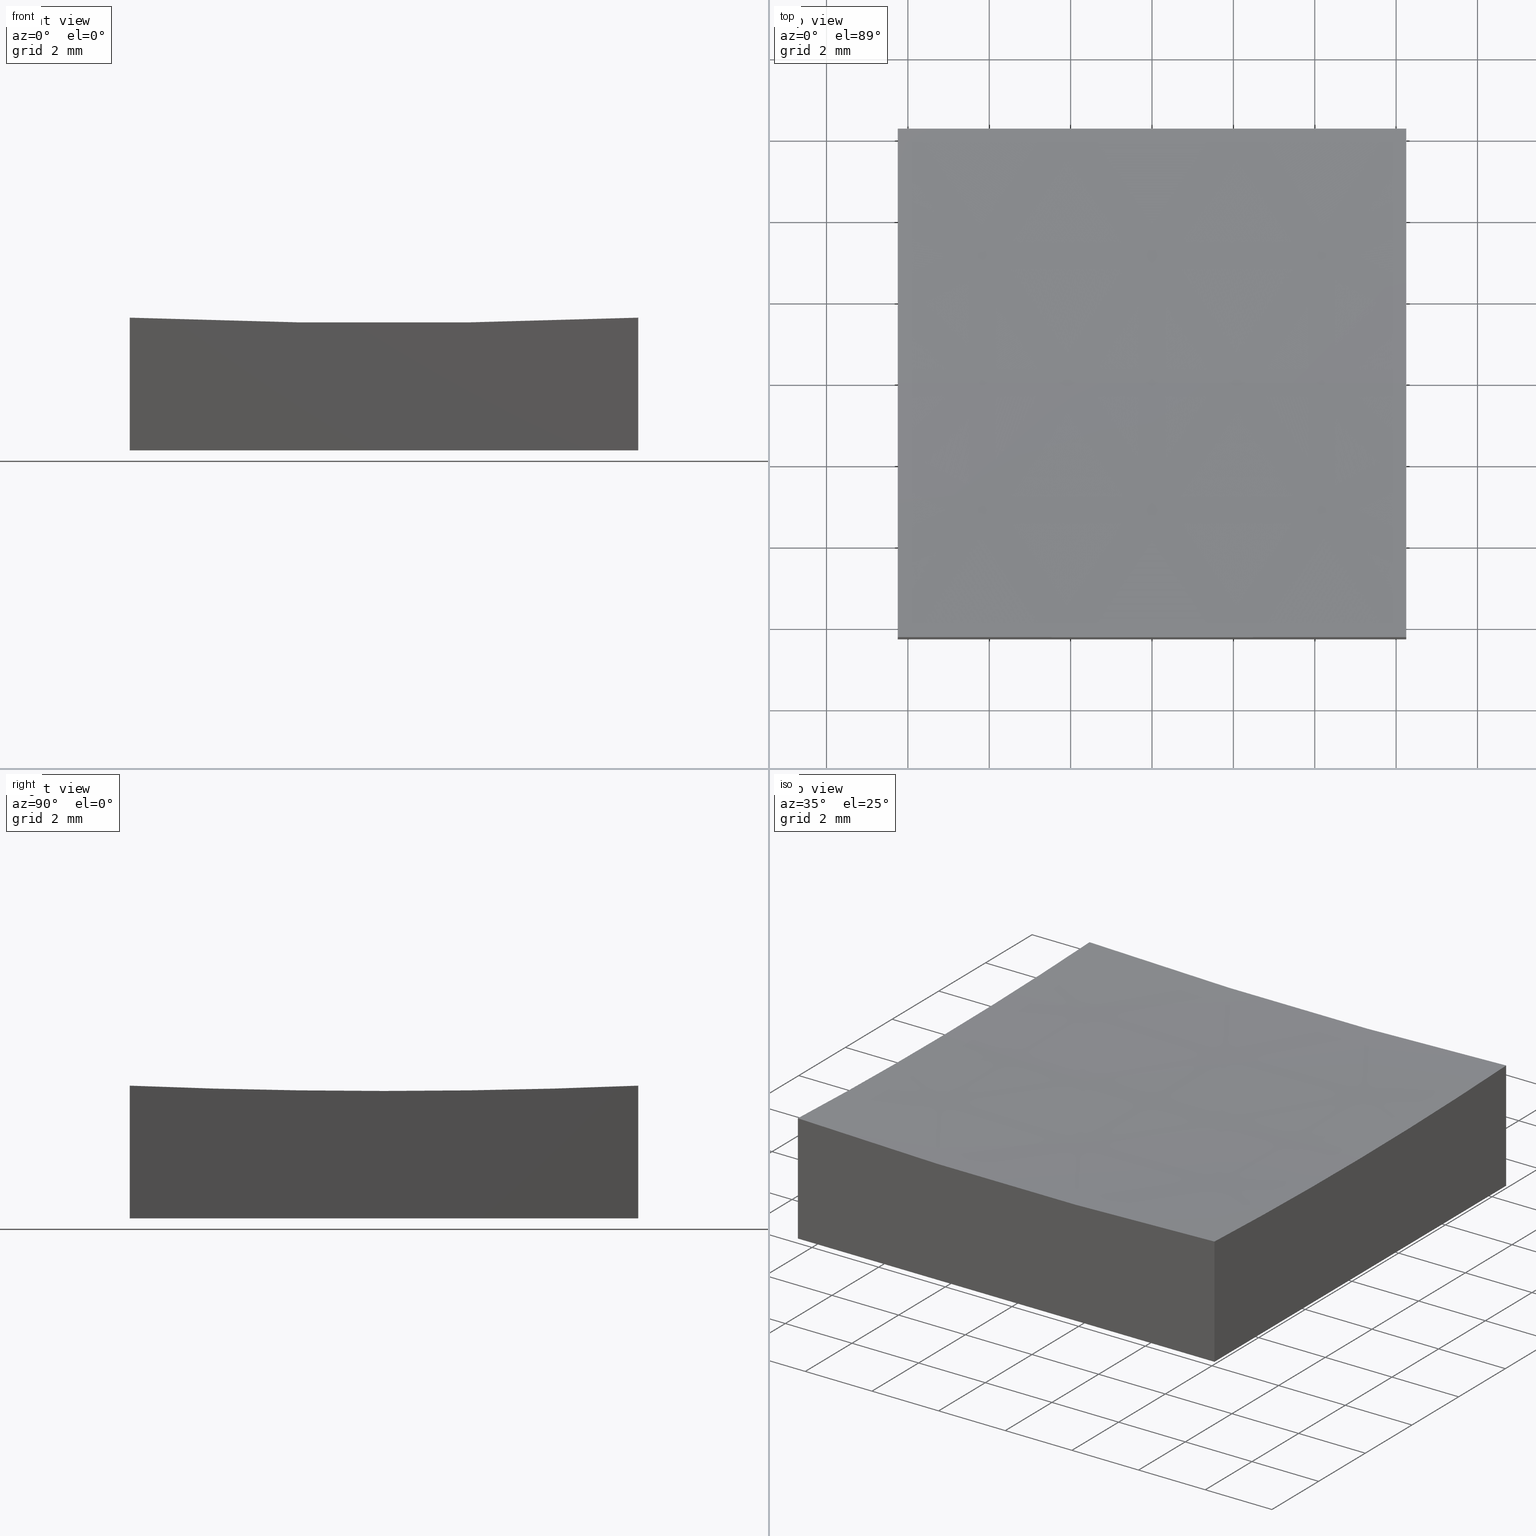
[diagram: canonical four-view strip — front | top / right | iso, engineering-drawing reading convention]
A machine part, canonical four-view strip (front | top / right | iso — engineering-drawing reading convention). The complete STEP part file that produces these views, byte-faithful:
ISO-10303-21;
HEADER;
FILE_DESCRIPTION (( 'STEP AP214' ),
    '1' );
FILE_NAME ('270019.STEP',
    '2020-06-01T09:06:12',
    ( '' ),
    ( '' ),
    'SwSTEP 2.0',
    'SolidWorks 2019',
    '' );
FILE_SCHEMA (( 'AUTOMOTIVE_DESIGN' ));
ENDSEC;

DATA;
#1 = ORIENTED_EDGE ( 'NONE', *, *, #154, .T. ) ;
#2 = CARTESIAN_POINT ( 'NONE',  ( -6.250000000000000000, 7.654042494670983244E-16, 3.130264896477552572 ) ) ;
#3 = VERTEX_POINT ( 'NONE', #142 ) ;
#4 = DIRECTION ( 'NONE',  ( 1.000000000000000000, 0.0000000000000000000, 0.0000000000000000000 ) ) ;
#5 = VECTOR ( 'NONE', #144, 1000.000000000000000 ) ;
#6 = ORIENTED_EDGE ( 'NONE', *, *, #86, .F. ) ;
#7 = SURFACE_STYLE_USAGE ( .BOTH. , #146 ) ;
#8 = APPLICATION_CONTEXT ( 'automotive_design' ) ;
#9 = CARTESIAN_POINT ( 'NONE',  ( 6.250000000000000000, -6.250000000000000888, 0.0000000000000000000 ) ) ;
#10 = DIRECTION ( 'NONE',  ( 1.224646799147353207E-16, 1.000000000000000000, 1.519266480857635220E-33 ) ) ;
#11 = CARTESIAN_POINT ( 'NONE',  ( 1.873709602695450291E-14, 0.0000000000000000000, 153.0000000000000000 ) ) ;
#12 = AXIS2_PLACEMENT_3D ( 'NONE', #207, #10, #15 ) ;
#13 = DIRECTION ( 'NONE',  ( -0.0000000000000000000, 1.000000000000000000, 0.0000000000000000000 ) ) ;
#14 = DIRECTION ( 'NONE',  ( 0.0000000000000000000, 1.000000000000000000, 0.0000000000000000000 ) ) ;
#15 = DIRECTION ( 'NONE',  ( -1.000000000000000000, 1.224646799147353207E-16, 0.0000000000000000000 ) ) ;
#16 = PRESENTATION_LAYER_ASSIGNMENT (  '', '', ( #130 ) ) ;
#17 = DIRECTION ( 'NONE',  ( 1.000000000000000000, 0.0000000000000000000, -0.0000000000000000000 ) ) ;
#18 = CARTESIAN_POINT ( 'NONE',  ( -6.250000000000000000, -6.250000000000000888, 0.0000000000000000000 ) ) ;
#19 = AXIS2_PLACEMENT_3D ( 'NONE', #113, #71, #72 ) ;
#20 = ORIENTED_EDGE ( 'NONE', *, *, #243, .F. ) ;
#21 = CIRCLE ( 'NONE', #78, 149.8697351035224585 ) ;
#22 = CARTESIAN_POINT ( 'NONE',  ( 0.0000000000000000000, 0.0000000000000000000, 0.0000000000000000000 ) ) ;
#23 = PRODUCT_RELATED_PRODUCT_CATEGORY ( 'part', '', ( #179 ) ) ;
#24 = ORIENTED_EDGE ( 'NONE', *, *, #199, .T. ) ;
#25 = DIRECTION ( 'NONE',  ( 0.0000000000000000000, -1.000000000000000000, 0.0000000000000000000 ) ) ;
#26 = ORIENTED_EDGE ( 'NONE', *, *, #225, .T. ) ;
#27 = AXIS2_PLACEMENT_3D ( 'NONE', #245, #42, #97 ) ;
#28 = ORIENTED_EDGE ( 'NONE', *, *, #154, .F. ) ;
#29 = PRODUCT_DEFINITION_CONTEXT ( 'detailed design', #8, 'design' ) ;
#30 = DIRECTION ( 'NONE',  ( 0.0000000000000000000, -1.000000000000000000, 0.0000000000000000000 ) ) ;
#31 = CARTESIAN_POINT ( 'NONE',  ( -6.250000000000000000, 0.0000000000000000000, 153.0000000000000000 ) ) ;
#32 = DIRECTION ( 'NONE',  ( 1.000000000000000000, 0.0000000000000000000, 0.0000000000000000000 ) ) ;
#33 = DIRECTION ( 'NONE',  ( 1.000000000000000000, 0.0000000000000000000, -0.0000000000000000000 ) ) ;
#34 = CARTESIAN_POINT ( 'NONE',  ( -6.250000000000000000, -6.250000000000000888, 10.00000000000000000 ) ) ;
#35 = CARTESIAN_POINT ( 'NONE',  ( -6.250000000000000000, 6.250000000000000888, 0.0000000000000000000 ) ) ;
#36 = UNCERTAINTY_MEASURE_WITH_UNIT (LENGTH_MEASURE( 1.000000000000000082E-05 ), #69, 'distance_accuracy_value', 'NONE');
#37 = AXIS2_PLACEMENT_3D ( 'NONE', #31, #17, #152 ) ;
#38 = VECTOR ( 'NONE', #126, 1000.000000000000000 ) ;
#39 = ADVANCED_FACE ( 'NONE', ( #247 ), #77, .F. ) ;
#40 =( NAMED_UNIT ( * ) PLANE_ANGLE_UNIT ( ) SI_UNIT ( $, .RADIAN. ) );
#41 = SURFACE_STYLE_FILL_AREA ( #83 ) ;
#42 = DIRECTION ( 'NONE',  ( -0.0000000000000000000, 1.000000000000000000, 0.0000000000000000000 ) ) ;
#43 = ADVANCED_FACE ( 'NONE', ( #96 ), #177, .T. ) ;
#44 = ORIENTED_EDGE ( 'NONE', *, *, #118, .F. ) ;
#45 = COLOUR_RGB ( '',1.000000000000000000, 1.000000000000000000, 1.000000000000000000 ) ;
#46 = EDGE_LOOP ( 'NONE', ( #235, #104, #79, #6, #121 ) ) ;
#47 = EDGE_LOOP ( 'NONE', ( #20, #101, #105, #234 ) ) ;
#48 = AXIS2_PLACEMENT_3D ( 'NONE', #150, #14, #135 ) ;
#49 = ADVANCED_FACE ( 'NONE', ( #161 ), #59, .T. ) ;
#50 = FILL_AREA_STYLE ('',( #200 ) ) ;
#51 = DIRECTION ( 'NONE',  ( -0.0000000000000000000, -0.0000000000000000000, -1.000000000000000000 ) ) ;
#52 =( NAMED_UNIT ( * ) PLANE_ANGLE_UNIT ( ) SI_UNIT ( $, .RADIAN. ) );
#53 = LINE ( 'NONE', #138, #170 ) ;
#54 = CARTESIAN_POINT ( 'NONE',  ( 6.250000000000000000, 0.0000000000000000000, 153.0000000000000000 ) ) ;
#55 = EDGE_CURVE ( 'NONE', #147, #60, #106, .T. ) ;
#56 =( NAMED_UNIT ( * ) SI_UNIT ( $, .STERADIAN. ) SOLID_ANGLE_UNIT ( ) );
#57 = CIRCLE ( 'NONE', #12, 149.9999999999999716 ) ;
#58 =( LENGTH_UNIT ( ) NAMED_UNIT ( * ) SI_UNIT ( .MILLI., .METRE. ) );
#59 = PLANE ( 'NONE',  #173 ) ;
#60 = VERTEX_POINT ( 'NONE', #155 ) ;
#61 = VERTEX_POINT ( 'NONE', #2 ) ;
#62 = CARTESIAN_POINT ( 'NONE',  ( 1.873709602695450291E-14, 6.250000000000000888, 153.0000000000000000 ) ) ;
#63 = SHAPE_DEFINITION_REPRESENTATION ( #82, #211 ) ;
#64 = ORIENTED_EDGE ( 'NONE', *, *, #242, .T. ) ;
#65 = EDGE_CURVE ( 'NONE', #60, #166, #195, .T. ) ;
#66 = DIRECTION ( 'NONE',  ( 0.0000000000000000000, 0.0000000000000000000, 1.000000000000000000 ) ) ;
#67 = CARTESIAN_POINT ( 'NONE',  ( 6.250000000000000000, -6.250000000000000888, 10.00000000000000000 ) ) ;
#68 = VECTOR ( 'NONE', #149, 1000.000000000000000 ) ;
#69 =( LENGTH_UNIT ( ) NAMED_UNIT ( * ) SI_UNIT ( .MILLI., .METRE. ) );
#70 = PLANE ( 'NONE',  #140 ) ;
#71 = DIRECTION ( 'NONE',  ( 1.000000000000000000, 0.0000000000000000000, -0.0000000000000000000 ) ) ;
#72 = DIRECTION ( 'NONE',  ( 0.0000000000000000000, 0.0000000000000000000, -1.000000000000000000 ) ) ;
#73 =( NAMED_UNIT ( * ) SI_UNIT ( $, .STERADIAN. ) SOLID_ANGLE_UNIT ( ) );
#74 = CARTESIAN_POINT ( 'NONE',  ( -6.250000000000000000, 6.250000000000000888, 10.00000000000000000 ) ) ;
#75 =( GEOMETRIC_REPRESENTATION_CONTEXT ( 3 ) GLOBAL_UNCERTAINTY_ASSIGNED_CONTEXT ( ( #36 ) ) GLOBAL_UNIT_ASSIGNED_CONTEXT ( ( #69, #52, #127 ) ) REPRESENTATION_CONTEXT ( 'NONE', 'WORKASPACE' ) );
#76 = DIRECTION ( 'NONE',  ( 1.000000000000000000, 0.0000000000000000000, -0.0000000000000000000 ) ) ;
#77 = SPHERICAL_SURFACE ( 'NONE', #27, 149.9999999999999716 ) ;
#78 = AXIS2_PLACEMENT_3D ( 'NONE', #54, #33, #187 ) ;
#79 = ORIENTED_EDGE ( 'NONE', *, *, #225, .F. ) ;
#80 = VECTOR ( 'NONE', #25, 1000.000000000000000 ) ;
#81 = DIRECTION ( 'NONE',  ( -1.000000000000000000, 0.0000000000000000000, -0.0000000000000000000 ) ) ;
#82 = PRODUCT_DEFINITION_SHAPE ( 'NONE', 'NONE',  #120 ) ;
#83 = FILL_AREA_STYLE ('',( #123 ) ) ;
#84 = EDGE_LOOP ( 'NONE', ( #180, #164, #162, #134 ) ) ;
#85 = VERTEX_POINT ( 'NONE', #213 ) ;
#86 = EDGE_CURVE ( 'NONE', #147, #85, #178, .T. ) ;
#87 = EDGE_LOOP ( 'NONE', ( #251, #26, #44, #107 ) ) ;
#88 = PRESENTATION_STYLE_ASSIGNMENT (( #7 ) ) ;
#89 = DIRECTION ( 'NONE',  ( 1.000000000000000000, 0.0000000000000000000, -0.0000000000000000000 ) ) ;
#90 =( LENGTH_UNIT ( ) NAMED_UNIT ( * ) SI_UNIT ( .MILLI., .METRE. ) );
#91 = VECTOR ( 'NONE', #51, 1000.000000000000000 ) ;
#92 = CARTESIAN_POINT ( 'NONE',  ( 2.978280986107261349E-14, 0.0000000000000000000, 3.000000000000030198 ) ) ;
#93 = LINE ( 'NONE', #35, #222 ) ;
#94 = CARTESIAN_POINT ( 'NONE',  ( 1.873709602695450291E-14, -6.250000000000000888, 153.0000000000000000 ) ) ;
#95 = EDGE_CURVE ( 'NONE', #166, #215, #216, .T. ) ;
#96 = FACE_OUTER_BOUND ( 'NONE', #87, .T. ) ;
#97 = DIRECTION ( 'NONE',  ( 1.000000000000000000, 0.0000000000000000000, 0.0000000000000000000 ) ) ;
#98 = CIRCLE ( 'NONE', #158, 149.9999999999999716 ) ;
#99 = ORIENTED_EDGE ( 'NONE', *, *, #153, .F. ) ;
#100 = CARTESIAN_POINT ( 'NONE',  ( -6.250000000000000000, 6.250000000000000888, 10.00000000000000000 ) ) ;
#101 = ORIENTED_EDGE ( 'NONE', *, *, #185, .T. ) ;
#102 = PRESENTATION_STYLE_ASSIGNMENT (( #163 ) ) ;
#103 = PRODUCT_CONTEXT ( 'NONE', #244, 'mechanical' ) ;
#104 = ORIENTED_EDGE ( 'NONE', *, *, #243, .T. ) ;
#105 = ORIENTED_EDGE ( 'NONE', *, *, #219, .T. ) ;
#106 = CIRCLE ( 'NONE', #229, 149.8697351035224585 ) ;
#107 = ORIENTED_EDGE ( 'NONE', *, *, #95, .F. ) ;
#108 = DIRECTION ( 'NONE',  ( 0.0000000000000000000, 0.0000000000000000000, -1.000000000000000000 ) ) ;
#109 = DIRECTION ( 'NONE',  ( -0.0000000000000000000, -0.0000000000000000000, -1.000000000000000000 ) ) ;
#110 = MANIFOLD_SOLID_BREP ( '�г�-��ת2', #183 ) ;
#111 = FACE_OUTER_BOUND ( 'NONE', #84, .T. ) ;
#112 = DIRECTION ( 'NONE',  ( 1.000000000000000000, 0.0000000000000000000, 0.0000000000000000000 ) ) ;
#113 = CARTESIAN_POINT ( 'NONE',  ( -6.250000000000000000, 0.0000000000000000000, 153.0000000000000000 ) ) ;
#114 = CARTESIAN_POINT ( 'NONE',  ( 6.250000000000000000, 6.250000000000000888, 0.0000000000000000000 ) ) ;
#115 = CARTESIAN_POINT ( 'NONE',  ( 6.250000000000000000, 6.250000000000000888, 3.260643116113293161 ) ) ;
#116 =( NAMED_UNIT ( * ) PLANE_ANGLE_UNIT ( ) SI_UNIT ( $, .RADIAN. ) );
#117 = AXIS2_PLACEMENT_3D ( 'NONE', #131, #196, #4 ) ;
#118 = EDGE_CURVE ( 'NONE', #215, #194, #204, .T. ) ;
#119 = AXIS2_PLACEMENT_3D ( 'NONE', #223, #13, #112 ) ;
#120 = PRODUCT_DEFINITION ( 'δ֪', '', #168, #29 ) ;
#121 = ORIENTED_EDGE ( 'NONE', *, *, #199, .F. ) ;
#122 = ORIENTED_EDGE ( 'NONE', *, *, #185, .F. ) ;
#123 = FILL_AREA_STYLE_COLOUR ( '', #191 ) ;
#124 = CIRCLE ( 'NONE', #37, 149.8697351035224585 ) ;
#125 = EDGE_LOOP ( 'NONE', ( #248, #145, #1, #143, #128 ) ) ;
#126 = DIRECTION ( 'NONE',  ( -0.0000000000000000000, -0.0000000000000000000, -1.000000000000000000 ) ) ;
#127 =( NAMED_UNIT ( * ) SI_UNIT ( $, .STERADIAN. ) SOLID_ANGLE_UNIT ( ) );
#128 = ORIENTED_EDGE ( 'NONE', *, *, #95, .T. ) ;
#129 = ADVANCED_FACE ( 'NONE', ( #169 ), #171, .F. ) ;
#130 = STYLED_ITEM ( 'NONE', ( #88 ), #211 ) ;
#131 = CARTESIAN_POINT ( 'NONE',  ( 0.0000000000000000000, 0.0000000000000000000, 0.0000000000000000000 ) ) ;
#132 = VERTEX_POINT ( 'NONE', #203 ) ;
#133 = VECTOR ( 'NONE', #189, 1000.000000000000000 ) ;
#134 = ORIENTED_EDGE ( 'NONE', *, *, #65, .F. ) ;
#135 = DIRECTION ( 'NONE',  ( 0.0000000000000000000, -0.0000000000000000000, 1.000000000000000000 ) ) ;
#136 = SPHERICAL_SURFACE ( 'NONE', #119, 149.9999999999999716 ) ;
#137 = CARTESIAN_POINT ( 'NONE',  ( -6.250000000000000000, -6.250000000000000888, 0.0000000000000000000 ) ) ;
#138 = CARTESIAN_POINT ( 'NONE',  ( -6.250000000000000000, -6.250000000000000888, 10.00000000000000000 ) ) ;
#139 = UNCERTAINTY_MEASURE_WITH_UNIT (LENGTH_MEASURE( 1.000000000000000082E-05 ), #58, 'distance_accuracy_value', 'NONE');
#140 = AXIS2_PLACEMENT_3D ( 'NONE', #74, #89, #226 ) ;
#141 = ORIENTED_EDGE ( 'NONE', *, *, #205, .F. ) ;
#142 = CARTESIAN_POINT ( 'NONE',  ( 6.250000000000000000, 0.0000000000000000000, 3.130264896477552572 ) ) ;
#143 = ORIENTED_EDGE ( 'NONE', *, *, #65, .T. ) ;
#144 = DIRECTION ( 'NONE',  ( -0.0000000000000000000, -0.0000000000000000000, -1.000000000000000000 ) ) ;
#145 = ORIENTED_EDGE ( 'NONE', *, *, #153, .T. ) ;
#146 = SURFACE_SIDE_STYLE ('',( #182 ) ) ;
#147 = VERTEX_POINT ( 'NONE', #115 ) ;
#148 = AXIS2_PLACEMENT_3D ( 'NONE', #241, #230, #151 ) ;
#149 = DIRECTION ( 'NONE',  ( 1.000000000000000000, 0.0000000000000000000, 0.0000000000000000000 ) ) ;
#150 = CARTESIAN_POINT ( 'NONE',  ( -6.250000000000000000, 6.250000000000000888, 10.00000000000000000 ) ) ;
#151 = DIRECTION ( 'NONE',  ( 0.0000000000000000000, 0.0000000000000000000, -1.000000000000000000 ) ) ;
#152 = DIRECTION ( 'NONE',  ( 0.0000000000000000000, 0.0000000000000000000, -1.000000000000000000 ) ) ;
#153 = EDGE_CURVE ( 'NONE', #202, #61, #210, .T. ) ;
#154 = EDGE_CURVE ( 'NONE', #61, #60, #124, .T. ) ;
#155 = CARTESIAN_POINT ( 'NONE',  ( -6.250000000000000000, 6.250000000000000888, 3.260643116113293161 ) ) ;
#156 = EDGE_CURVE ( 'NONE', #220, #3, #98, .T. ) ;
#157 = ADVANCED_FACE ( 'NONE', ( #111 ), #238, .T. ) ;
#158 = AXIS2_PLACEMENT_3D ( 'NONE', #11, #30, #108 ) ;
#159 = DIRECTION ( 'NONE',  ( 0.0000000000000000000, 1.000000000000000000, 0.0000000000000000000 ) ) ;
#160 = STYLED_ITEM ( 'NONE', ( #102 ), #110 ) ;
#161 = FACE_OUTER_BOUND ( 'NONE', #46, .T. ) ;
#162 = ORIENTED_EDGE ( 'NONE', *, *, #231, .F. ) ;
#163 = SURFACE_STYLE_USAGE ( .BOTH. , #233 ) ;
#164 = ORIENTED_EDGE ( 'NONE', *, *, #86, .T. ) ;
#165 = UNCERTAINTY_MEASURE_WITH_UNIT (LENGTH_MEASURE( 1.000000000000000082E-05 ), #90, 'distance_accuracy_value', 'NONE');
#166 = VERTEX_POINT ( 'NONE', #188 ) ;
#167 = APPLICATION_PROTOCOL_DEFINITION ( 'draft international standard', 'automotive_design', 1998, #8 ) ;
#168 = PRODUCT_DEFINITION_FORMATION_WITH_SPECIFIED_SOURCE ( '�κ�', '', #179, .NOT_KNOWN. ) ;
#169 = FACE_OUTER_BOUND ( 'NONE', #47, .T. ) ;
#170 = VECTOR ( 'NONE', #109, 1000.000000000000000 ) ;
#171 = PLANE ( 'NONE',  #249 ) ;
#172 = CARTESIAN_POINT ( 'NONE',  ( -6.250000000000000000, -6.250000000000000888, 3.260643116113293161 ) ) ;
#173 = AXIS2_PLACEMENT_3D ( 'NONE', #174, #76, #175 ) ;
#174 = CARTESIAN_POINT ( 'NONE',  ( 6.250000000000000000, 6.250000000000000888, 10.00000000000000000 ) ) ;
#175 = DIRECTION ( 'NONE',  ( -0.0000000000000000000, 0.0000000000000000000, -1.000000000000000000 ) ) ;
#176 =( GEOMETRIC_REPRESENTATION_CONTEXT ( 3 ) GLOBAL_UNCERTAINTY_ASSIGNED_CONTEXT ( ( #139 ) ) GLOBAL_UNIT_ASSIGNED_CONTEXT ( ( #58, #40, #56 ) ) REPRESENTATION_CONTEXT ( 'NONE', 'WORKASPACE' ) );
#177 = PLANE ( 'NONE',  #212 ) ;
#178 = LINE ( 'NONE', #232, #5 ) ;
#179 = PRODUCT ( '270019', '270019', '', ( #103 ) ) ;
#180 = ORIENTED_EDGE ( 'NONE', *, *, #55, .F. ) ;
#181 = ORIENTED_EDGE ( 'NONE', *, *, #156, .F. ) ;
#182 = SURFACE_STYLE_FILL_AREA ( #50 ) ;
#183 = CLOSED_SHELL ( 'NONE', ( #218, #157, #198, #129, #49, #43, #39 ) ) ;
#184 = ORIENTED_EDGE ( 'NONE', *, *, #156, .T. ) ;
#185 = EDGE_CURVE ( 'NONE', #132, #202, #190, .T. ) ;
#186 = DIRECTION ( 'NONE',  ( 0.0000000000000000000, 1.000000000000000000, 0.0000000000000000000 ) ) ;
#187 = DIRECTION ( 'NONE',  ( 0.0000000000000000000, 0.0000000000000000000, -1.000000000000000000 ) ) ;
#188 = CARTESIAN_POINT ( 'NONE',  ( -6.250000000000000000, 6.250000000000000888, 0.0000000000000000000 ) ) ;
#189 = DIRECTION ( 'NONE',  ( 0.0000000000000000000, -1.000000000000000000, 0.0000000000000000000 ) ) ;
#190 = CIRCLE ( 'NONE', #239, 149.8697351035224585 ) ;
#191 = COLOUR_RGB ( '',1.000000000000000000, 1.000000000000000000, 1.000000000000000000 ) ;
#192 = EDGE_LOOP ( 'NONE', ( #141, #184, #24, #237, #28 ) ) ;
#193 = CIRCLE ( 'NONE', #148, 149.8697351035224585 ) ;
#194 = VERTEX_POINT ( 'NONE', #9 ) ;
#195 = LINE ( 'NONE', #100, #38 ) ;
#196 = DIRECTION ( 'NONE',  ( 0.0000000000000000000, 0.0000000000000000000, 1.000000000000000000 ) ) ;
#197 = ORIENTED_EDGE ( 'NONE', *, *, #205, .T. ) ;
#198 = ADVANCED_FACE ( 'NONE', ( #228 ), #70, .F. ) ;
#199 = EDGE_CURVE ( 'NONE', #3, #147, #21, .T. ) ;
#200 = FILL_AREA_STYLE_COLOUR ( '', #45 ) ;
#201 = MECHANICAL_DESIGN_GEOMETRIC_PRESENTATION_REPRESENTATION (  '', ( #160 ), #176 ) ;
#202 = VERTEX_POINT ( 'NONE', #172 ) ;
#203 = CARTESIAN_POINT ( 'NONE',  ( 6.250000000000000000, -6.250000000000000888, 3.260643116113293161 ) ) ;
#204 = LINE ( 'NONE', #137, #68 ) ;
#205 = EDGE_CURVE ( 'NONE', #220, #61, #57, .T. ) ;
#206 = LINE ( 'NONE', #114, #133 ) ;
#207 = CARTESIAN_POINT ( 'NONE',  ( 1.873709602695450291E-14, 0.0000000000000000000, 153.0000000000000000 ) ) ;
#208 = FACE_OUTER_BOUND ( 'NONE', #217, .T. ) ;
#209 = MECHANICAL_DESIGN_GEOMETRIC_PRESENTATION_REPRESENTATION (  '', ( #130 ), #75 ) ;
#210 = CIRCLE ( 'NONE', #19, 149.8697351035224585 ) ;
#211 = ADVANCED_BREP_SHAPE_REPRESENTATION ( '270019', ( #110, #117 ), #246 ) ;
#212 = AXIS2_PLACEMENT_3D ( 'NONE', #22, #250, #81 ) ;
#213 = CARTESIAN_POINT ( 'NONE',  ( 6.250000000000000000, 6.250000000000000888, 0.0000000000000000000 ) ) ;
#214 = DIRECTION ( 'NONE',  ( 0.0000000000000000000, 0.0000000000000000000, 1.000000000000000000 ) ) ;
#215 = VERTEX_POINT ( 'NONE', #18 ) ;
#216 = LINE ( 'NONE', #252, #80 ) ;
#217 = EDGE_LOOP ( 'NONE', ( #181, #197, #99, #122, #64 ) ) ;
#218 = ADVANCED_FACE ( 'NONE', ( #208 ), #136, .F. ) ;
#219 = EDGE_CURVE ( 'NONE', #202, #215, #53, .T. ) ;
#220 = VERTEX_POINT ( 'NONE', #92 ) ;
#221 = DIRECTION ( 'NONE',  ( 0.0000000000000000000, -0.0000000000000000000, 1.000000000000000000 ) ) ;
#222 = VECTOR ( 'NONE', #32, 1000.000000000000000 ) ;
#223 = CARTESIAN_POINT ( 'NONE',  ( 1.873709602695450291E-14, 0.0000000000000000000, 153.0000000000000000 ) ) ;
#224 = PRESENTATION_LAYER_ASSIGNMENT (  '', '', ( #160 ) ) ;
#225 = EDGE_CURVE ( 'NONE', #85, #194, #206, .T. ) ;
#226 = DIRECTION ( 'NONE',  ( -0.0000000000000000000, 0.0000000000000000000, -1.000000000000000000 ) ) ;
#227 = LINE ( 'NONE', #67, #91 ) ;
#228 = FACE_OUTER_BOUND ( 'NONE', #125, .T. ) ;
#229 = AXIS2_PLACEMENT_3D ( 'NONE', #62, #159, #214 ) ;
#230 = DIRECTION ( 'NONE',  ( 1.000000000000000000, 0.0000000000000000000, -0.0000000000000000000 ) ) ;
#231 = EDGE_CURVE ( 'NONE', #166, #85, #93, .T. ) ;
#232 = CARTESIAN_POINT ( 'NONE',  ( 6.250000000000000000, 6.250000000000000888, 10.00000000000000000 ) ) ;
#233 = SURFACE_SIDE_STYLE ('',( #41 ) ) ;
#234 = ORIENTED_EDGE ( 'NONE', *, *, #118, .T. ) ;
#235 = ORIENTED_EDGE ( 'NONE', *, *, #242, .F. ) ;
#236 = APPLICATION_PROTOCOL_DEFINITION ( 'draft international standard', 'automotive_design', 1998, #244 ) ;
#237 = ORIENTED_EDGE ( 'NONE', *, *, #55, .T. ) ;
#238 = PLANE ( 'NONE',  #48 ) ;
#239 = AXIS2_PLACEMENT_3D ( 'NONE', #94, #186, #66 ) ;
#240 = DIRECTION ( 'NONE',  ( 0.0000000000000000000, 1.000000000000000000, 0.0000000000000000000 ) ) ;
#241 = CARTESIAN_POINT ( 'NONE',  ( 6.250000000000000000, 0.0000000000000000000, 153.0000000000000000 ) ) ;
#242 = EDGE_CURVE ( 'NONE', #132, #3, #193, .T. ) ;
#243 = EDGE_CURVE ( 'NONE', #132, #194, #227, .T. ) ;
#244 = APPLICATION_CONTEXT ( 'automotive_design' ) ;
#245 = CARTESIAN_POINT ( 'NONE',  ( 1.873709602695450291E-14, 0.0000000000000000000, 153.0000000000000000 ) ) ;
#246 =( GEOMETRIC_REPRESENTATION_CONTEXT ( 3 ) GLOBAL_UNCERTAINTY_ASSIGNED_CONTEXT ( ( #165 ) ) GLOBAL_UNIT_ASSIGNED_CONTEXT ( ( #90, #116, #73 ) ) REPRESENTATION_CONTEXT ( 'NONE', 'WORKASPACE' ) );
#247 = FACE_OUTER_BOUND ( 'NONE', #192, .T. ) ;
#248 = ORIENTED_EDGE ( 'NONE', *, *, #219, .F. ) ;
#249 = AXIS2_PLACEMENT_3D ( 'NONE', #34, #240, #221 ) ;
#250 = DIRECTION ( 'NONE',  ( 0.0000000000000000000, 0.0000000000000000000, -1.000000000000000000 ) ) ;
#251 = ORIENTED_EDGE ( 'NONE', *, *, #231, .T. ) ;
#252 = CARTESIAN_POINT ( 'NONE',  ( -6.250000000000000000, 6.250000000000000888, 0.0000000000000000000 ) ) ;
ENDSEC;
END-ISO-10303-21;
